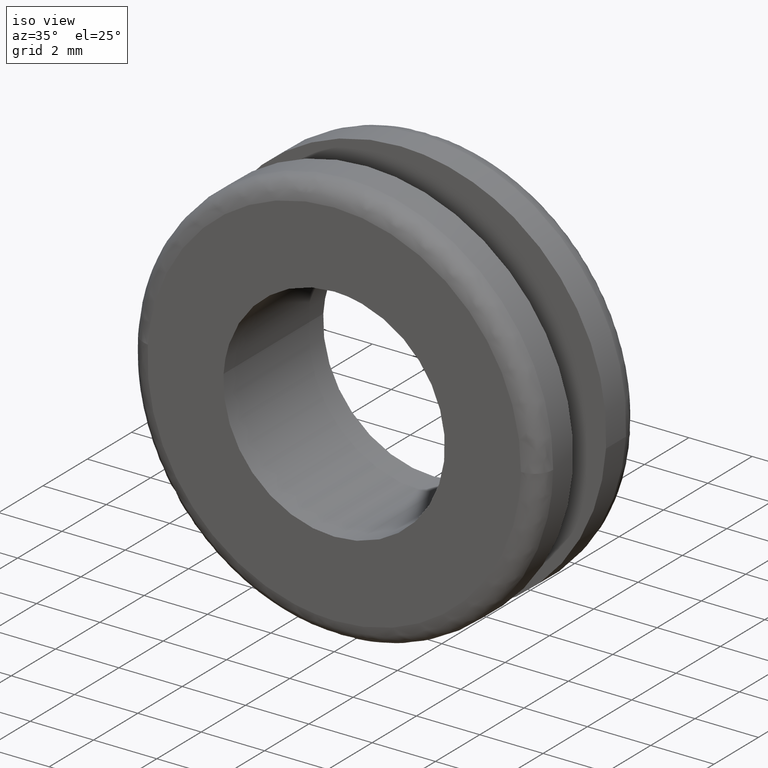
[diagram: clean part render]
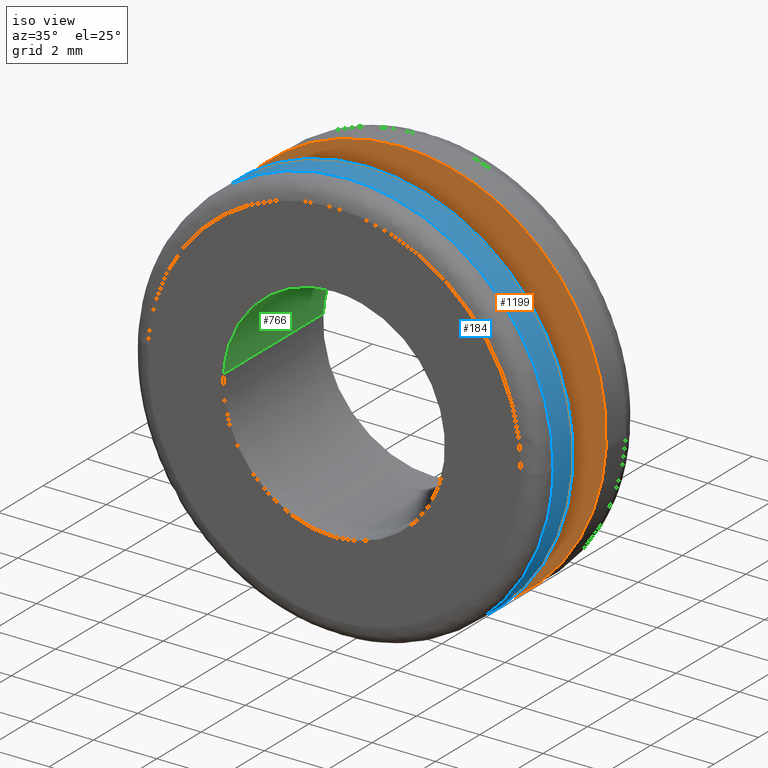
[diagram: same view with three faces highlighted in distinct colors, each labeled with its STEP entity id]
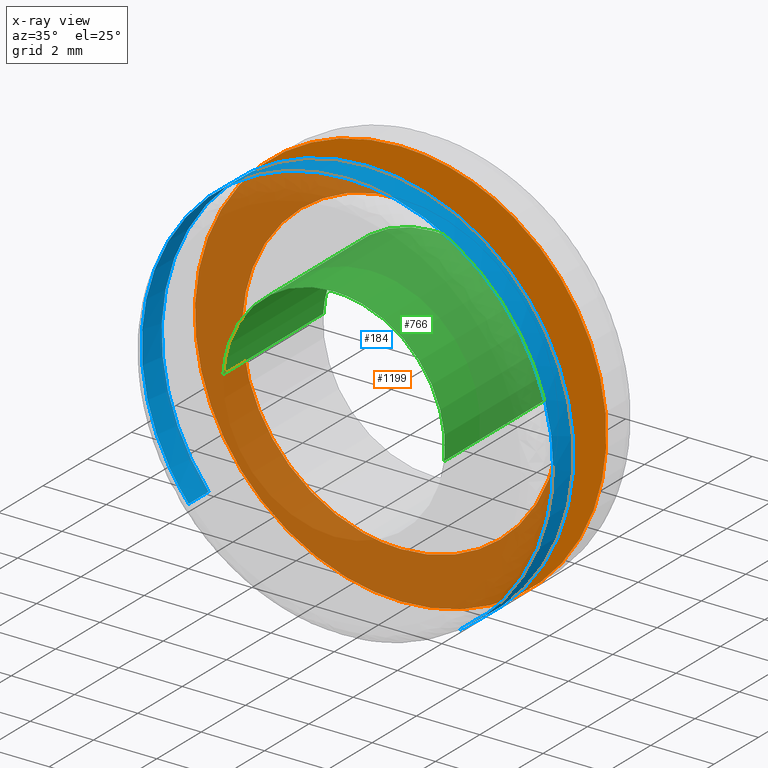
[diagram: x-ray of the same camera — body ghosted, the three highlighted faces saturated]
A machine part, iso view with three faces highlighted in distinct colors.
The next image is the same camera in x-ray (body ghosted, the three faces saturated) — at least one of them is partly hidden behind the body in this view.
Their STEP definitions:

[orange] entity #1199 — the highlighted face is a freeform B-spline surface patch.
#301=CARTESIAN_POINT('',(4.965048218866258,3.0,-0.590166234469792));
#302=VERTEX_POINT('',#301);
#308=CARTESIAN_POINT('',(0.0,3.0,5.0));
#309=VERTEX_POINT('',#308);
#310=CARTESIAN_POINT('',(4.965048218866258,3.000000000000000,-0.590166234469792));
#311=CARTESIAN_POINT('',(5.0,3.000000000000001,-0.296118102746663));
#312=CARTESIAN_POINT('',(5.0,3.0,-1.928755E-016));
#313=CARTESIAN_POINT('',(5.000000000000001,3.0,5.000000000000001));
#314=CARTESIAN_POINT('',(0.0,3.0,5.0));
#322=(BOUNDED_CURVE()B_SPLINE_CURVE(2,(#310,#311,#312,#313,#314),.UNSPECIFIED.,.F.,.U.)B_SPLINE_CURVE_WITH_KNOTS((3,2,3),(0.229562641625948,0.250000000000000,0.500000000000000),.UNSPECIFIED.)CURVE()GEOMETRIC_REPRESENTATION_ITEM()RATIONAL_B_SPLINE_CURVE((0.956027083691225,0.976056145287119,1.0,0.707106781186548,1.0))REPRESENTATION_ITEM(''));
#323=EDGE_CURVE('',#302,#309,#322,.T.);
#325=CARTESIAN_POINT('',(-4.990674085489411,3.0,0.305241170915862));
#326=VERTEX_POINT('',#325);
#327=CARTESIAN_POINT('',(0.0,3.0,5.0));
#328=CARTESIAN_POINT('',(-4.703531776132310,2.999999999999999,4.999999999999998));
#329=CARTESIAN_POINT('',(-4.990674085489411,3.0,0.305241170915862));
#337=(BOUNDED_CURVE()B_SPLINE_CURVE(2,(#327,#328,#329),.UNSPECIFIED.,.F.,.U.)B_SPLINE_CURVE_WITH_KNOTS((3,3),(0.500000000000000,0.739333015027880),.UNSPECIFIED.)CURVE()GEOMETRIC_REPRESENTATION_ITEM()RATIONAL_B_SPLINE_CURVE((1.0,0.719603931440624,0.976072154803484))REPRESENTATION_ITEM(''));
#338=EDGE_CURVE('',#309,#326,#337,.T.);
#412=CARTESIAN_POINT('',(0.0,3.0,-5.0));
#413=VERTEX_POINT('',#412);
#414=CARTESIAN_POINT('',(-4.990674085489411,3.0,0.305241170915862));
#415=CARTESIAN_POINT('',(-5.0,3.000000000000000,0.152763050973311));
#416=CARTESIAN_POINT('',(-5.0,3.0,-1.928755E-016));
#417=CARTESIAN_POINT('',(-5.000000000000001,3.0,-5.000000000000001));
#418=CARTESIAN_POINT('',(0.0,3.0,-5.0));
#426=(BOUNDED_CURVE()B_SPLINE_CURVE(2,(#414,#415,#416,#417,#418),.UNSPECIFIED.,.F.,.U.)B_SPLINE_CURVE_WITH_KNOTS((3,2,3),(0.739333015027880,0.750000000000000,1.0),.UNSPECIFIED.)CURVE()GEOMETRIC_REPRESENTATION_ITEM()RATIONAL_B_SPLINE_CURVE((0.976072154803484,0.987502849745924,1.0,0.707106781186548,1.0))REPRESENTATION_ITEM(''));
#427=EDGE_CURVE('',#326,#413,#426,.T.);
#429=CARTESIAN_POINT('',(0.0,3.0,-5.0));
#430=CARTESIAN_POINT('',(4.440877078264001,3.0,-4.999999999999999));
#431=CARTESIAN_POINT('',(4.965048218866258,3.000000000000000,-0.590166234469792));
#439=(BOUNDED_CURVE()B_SPLINE_CURVE(2,(#429,#430,#431),.UNSPECIFIED.,.F.,.U.)B_SPLINE_CURVE_WITH_KNOTS((3,3),(0.0,0.229562641625948),.UNSPECIFIED.)CURVE()GEOMETRIC_REPRESENTATION_ITEM()RATIONAL_B_SPLINE_CURVE((1.0,0.731050635899429,0.956027083691225))REPRESENTATION_ITEM(''));
#440=EDGE_CURVE('',#413,#302,#439,.T.);
#472=CARTESIAN_POINT('',(2.285515381072492,2.999999999999971,6.084933807600427));
#473=VERTEX_POINT('',#472);
#474=CARTESIAN_POINT('',(0.0,3.0,6.500000000000000));
#475=VERTEX_POINT('',#474);
#476=CARTESIAN_POINT('',(2.285515381072492,2.999999999999971,6.084933807600427));
#477=CARTESIAN_POINT('',(1.180447208073476,3.000000000000000,6.500000000000000));
#478=CARTESIAN_POINT('',(0.0,3.0,6.500000000000000));
#486=(BOUNDED_CURVE()B_SPLINE_CURVE(2,(#476,#477,#478),.UNSPECIFIED.,.F.,.U.)B_SPLINE_CURVE_WITH_KNOTS((3,3),(0.440284208601526,0.500000000000000),.UNSPECIFIED.)CURVE()GEOMETRIC_REPRESENTATION_ITEM()RATIONAL_B_SPLINE_CURVE((0.893499600774832,0.930038598573233,1.0))REPRESENTATION_ITEM(''));
#487=EDGE_CURVE('',#473,#475,#486,.T.);
#571=CARTESIAN_POINT('',(6.487876494954307,3.000000000000068,-0.396810516738664));
#572=VERTEX_POINT('',#571);
#578=CARTESIAN_POINT('',(0.0,3.0,-6.500000000000000));
#579=VERTEX_POINT('',#578);
#580=CARTESIAN_POINT('',(0.0,3.0,-6.500000000000000));
#581=CARTESIAN_POINT('',(6.114594146796498,3.000000000000000,-6.500000000000001));
#582=CARTESIAN_POINT('',(6.487876494954307,3.000000000000068,-0.396810516738664));
#590=(BOUNDED_CURVE()B_SPLINE_CURVE(2,(#580,#581,#582),.UNSPECIFIED.,.F.,.U.)B_SPLINE_CURVE_WITH_KNOTS((3,3),(0.0,0.239333094958683),.UNSPECIFIED.)CURVE()GEOMETRIC_REPRESENTATION_ITEM()RATIONAL_B_SPLINE_CURVE((1.0,0.719603837795862,0.976072326110551))REPRESENTATION_ITEM(''));
#591=EDGE_CURVE('',#579,#572,#590,.T.);
#593=CARTESIAN_POINT('',(0.0,3.0,6.500000000000000));
#594=CARTESIAN_POINT('',(-6.500000000000000,3.000000000000000,6.500000000000000));
#595=CARTESIAN_POINT('',(-6.500000000000000,3.0,-1.928755E-016));
#596=CARTESIAN_POINT('',(-6.500000000000000,3.000000000000000,-6.500000000000000));
#597=CARTESIAN_POINT('',(0.0,3.0,-6.500000000000000));
#605=(BOUNDED_CURVE()B_SPLINE_CURVE(2,(#593,#594,#595,#596,#597),.UNSPECIFIED.,.F.,.U.)B_SPLINE_CURVE_WITH_KNOTS((3,2,3),(0.500000000000000,0.750000000000000,1.0),.UNSPECIFIED.)CURVE()GEOMETRIC_REPRESENTATION_ITEM()RATIONAL_B_SPLINE_CURVE((1.0,0.707106781186547,1.0,0.707106781186547,1.0))REPRESENTATION_ITEM(''));
#606=EDGE_CURVE('',#475,#579,#605,.T.);
#625=CARTESIAN_POINT('',(6.487876494954307,3.000000000000068,-0.396810516738664));
#626=CARTESIAN_POINT('',(6.500000000000000,3.000000000000001,-0.198590459325951));
#627=CARTESIAN_POINT('',(6.500000000000000,3.0,-1.928755E-016));
#628=CARTESIAN_POINT('',(6.499999999999999,3.000000000000000,4.501963519933568));
#629=CARTESIAN_POINT('',(2.285515381072492,2.999999999999971,6.084933807600427));
#637=(BOUNDED_CURVE()B_SPLINE_CURVE(2,(#625,#626,#627,#628,#629),.UNSPECIFIED.,.F.,.U.)B_SPLINE_CURVE_WITH_KNOTS((3,2,3),(0.239333094958683,0.250000000000000,0.440284208601526),.UNSPECIFIED.)CURVE()GEOMETRIC_REPRESENTATION_ITEM()RATIONAL_B_SPLINE_CURVE((0.976072326110551,0.987502943390685,1.0,0.777068182613315,0.893499600774832))REPRESENTATION_ITEM(''));
#638=EDGE_CURVE('',#572,#473,#637,.T.);
#1182=CARTESIAN_POINT('',(-7.149293404633553,3.0,-7.149349974803476));
#1183=CARTESIAN_POINT('',(-7.149293404633553,3.0,7.149350323490650));
#1184=CARTESIAN_POINT('',(7.148161217386276,3.0,-7.149349974803476));
#1185=CARTESIAN_POINT('',(7.148161217386276,3.0,7.149350323490650));
#1186=B_SPLINE_SURFACE_WITH_KNOTS('',1,1,((#1182,#1184),(#1183,#1185)),.UNSPECIFIED.,.F.,.F.,.U.,(2,2),(2,2),(0.0,14.298700298294129),(0.0,14.297454622019830),.UNSPECIFIED.);
#1187=ORIENTED_EDGE('',*,*,#591,.T.);
#1188=ORIENTED_EDGE('',*,*,#638,.T.);
#1189=ORIENTED_EDGE('',*,*,#487,.T.);
#1190=ORIENTED_EDGE('',*,*,#606,.T.);
#1191=EDGE_LOOP('',(#1187,#1188,#1189,#1190));
#1192=FACE_OUTER_BOUND('',#1191,.T.);
#1193=ORIENTED_EDGE('',*,*,#338,.F.);
#1194=ORIENTED_EDGE('',*,*,#323,.F.);
#1195=ORIENTED_EDGE('',*,*,#440,.F.);
#1196=ORIENTED_EDGE('',*,*,#427,.F.);
#1197=EDGE_LOOP('',(#1193,#1194,#1195,#1196));
#1198=FACE_BOUND('',#1197,.T.);
#1199=ADVANCED_FACE('',(#1192,#1198),#1186,.F.);

[blue] entity #184 — the highlighted face is a freeform B-spline surface patch.
#44=CARTESIAN_POINT('',(3.527737599937955,1.522500000001081,-5.459401746160834));
#45=CARTESIAN_POINT('',(3.843977972462719,1.522500000001081,-5.255054620844674));
#46=CARTESIAN_POINT('',(4.134508431805464,1.522500000001081,-5.015559792020178));
#47=CARTESIAN_POINT('',(9.150068223825642,1.522500000001081,-0.881051360214714));
#48=CARTESIAN_POINT('',(5.015559792020178,1.522500000001081,4.134508431805464));
#49=CARTESIAN_POINT('',(0.881051360214714,1.522500000001081,9.150068223825642));
#50=CARTESIAN_POINT('',(-4.134508431805464,1.522500000001081,5.015559792020178));
#51=CARTESIAN_POINT('',(-9.150068223825642,1.522500000001081,0.881051360214714));
#52=CARTESIAN_POINT('',(-5.015559792020178,1.522500000001081,-4.134508431805464));
#53=CARTESIAN_POINT('',(3.527737599937955,0.576937499954984,-5.459401746160834));
#54=CARTESIAN_POINT('',(3.843977972462719,0.576937499954984,-5.255054620844674));
#55=CARTESIAN_POINT('',(4.134508431805464,0.576937499954984,-5.015559792020178));
#56=CARTESIAN_POINT('',(9.150068223825642,0.576937499954984,-0.881051360214714));
#57=CARTESIAN_POINT('',(5.015559792020178,0.576937499954984,4.134508431805464));
#58=CARTESIAN_POINT('',(0.881051360214714,0.576937499954984,9.150068223825642));
#59=CARTESIAN_POINT('',(-4.134508431805464,0.576937499954984,5.015559792020178));
#60=CARTESIAN_POINT('',(-9.150068223825642,0.576937499954984,0.881051360214714));
#61=CARTESIAN_POINT('',(-5.015559792020178,0.576937499954984,-4.134508431805464));
#69=(BOUNDED_SURFACE()B_SPLINE_SURFACE(2,1,((#44,#53),(#45,#54),(#46,#55),(#47,#56),(#48,#57),(#49,#58),(#50,#59),(#51,#60),(#52,#61)),.UNSPECIFIED.,.F.,.F.,.U.)B_SPLINE_SURFACE_WITH_KNOTS((3,2,2,2,3),(2,2),(0.0,0.861564209736037,11.631116831436509,22.400669453136970,33.170222074837440),(0.0,1.0),.UNSPECIFIED.)GEOMETRIC_REPRESENTATION_ITEM()RATIONAL_B_SPLINE_SURFACE(((0.956886118190660,0.956886118190660),(0.976568542494924,0.976568542494924),(1.0,1.0),(0.707106781186548,0.707106781186548),(1.0,1.0),(0.707106781186548,0.707106781186548),(1.0,1.0),(0.707106781186548,0.707106781186548),(1.0,1.0)))REPRESENTATION_ITEM('')SURFACE());
#70=CARTESIAN_POINT('',(3.527737390288090,0.599999999992864,-5.459401881631385));
#71=VERTEX_POINT('',#70);
#72=CARTESIAN_POINT('',(6.499486787324761,0.599999999956108,-0.081679259245201));
#73=VERTEX_POINT('',#72);
#74=CARTESIAN_POINT('',(3.527737390288090,0.599999999992864,-5.459401881631385));
#75=CARTESIAN_POINT('',(6.455681202378268,0.599999999979934,-3.567433454250579));
#76=CARTESIAN_POINT('',(6.499486787324761,0.599999999956108,-0.081679259245201));
#84=(BOUNDED_CURVE()B_SPLINE_CURVE(2,(#74,#75,#76),.UNSPECIFIED.,.F.,.U.)B_SPLINE_CURVE_WITH_KNOTS((3,3),(0.092934731225705,0.247784295921544),.UNSPECIFIED.)CURVE()GEOMETRIC_REPRESENTATION_ITEM()RATIONAL_B_SPLINE_CURVE((0.863190106682966,0.816652486740027,0.994854295643588))REPRESENTATION_ITEM(''));
#85=EDGE_CURVE('',#71,#73,#84,.T.);
#86=ORIENTED_EDGE('',*,*,#85,.F.);
#87=CARTESIAN_POINT('',(3.527737407828749,1.499999999999984,-5.459401870297297));
#88=VERTEX_POINT('',#87);
#89=CARTESIAN_POINT('',(3.527737407828749,1.499999999999984,-5.459401870297297));
#90=CARTESIAN_POINT('',(3.527737390288090,0.599999999992864,-5.459401881631385));
#91=QUASI_UNIFORM_CURVE('',1,(#89,#90),.UNSPECIFIED.,.F.,.U.);
#92=EDGE_CURVE('',#88,#71,#91,.T.);
#93=ORIENTED_EDGE('',*,*,#92,.F.);
#94=CARTESIAN_POINT('',(0.0,1.499999999999984,6.500000000000000));
#95=VERTEX_POINT('',#94);
#96=CARTESIAN_POINT('',(3.527737407828749,1.499999999999984,-5.459401870297297));
#97=CARTESIAN_POINT('',(6.500000000000000,1.499999999999984,-3.538795662514091));
#98=CARTESIAN_POINT('',(6.500000000000000,1.499999999999984,-1.928755E-016));
#99=CARTESIAN_POINT('',(6.500000000000000,1.499999999999984,6.500000000000000));
#100=CARTESIAN_POINT('',(0.0,1.499999999999984,6.500000000000000));
#108=(BOUNDED_CURVE()B_SPLINE_CURVE(2,(#96,#97,#98,#99,#100),.UNSPECIFIED.,.F.,.U.)B_SPLINE_CURVE_WITH_KNOTS((3,2,3),(0.092934732206239,0.250000000000000,0.500000000000000),.UNSPECIFIED.)CURVE()GEOMETRIC_REPRESENTATION_ITEM()RATIONAL_B_SPLINE_CURVE((0.863190106093599,0.815986592608353,1.0,0.707106781186547,1.0))REPRESENTATION_ITEM(''));
#109=EDGE_CURVE('',#88,#95,#108,.T.);
#110=ORIENTED_EDGE('',*,*,#109,.T.);
#111=CARTESIAN_POINT('',(-5.015559880678618,1.499999999999984,-4.134508324254174));
#112=VERTEX_POINT('',#111);
#113=CARTESIAN_POINT('',(0.0,1.499999999999984,6.500000000000000));
#114=CARTESIAN_POINT('',(-6.500000000000000,1.499999999999984,6.500000000000000));
#115=CARTESIAN_POINT('',(-6.500000000000000,1.499999999999984,-1.928755E-016));
#116=CARTESIAN_POINT('',(-6.500000000000000,1.499999999999984,-2.333738305399645));
#117=CARTESIAN_POINT('',(-5.015559880678619,1.499999999999985,-4.134508324254174));
#125=(BOUNDED_CURVE()B_SPLINE_CURVE(2,(#113,#114,#115,#116,#117),.UNSPECIFIED.,.F.,.U.)B_SPLINE_CURVE_WITH_KNOTS((3,2,3),(0.500000000000000,0.750000000000000,0.860504619373458),.UNSPECIFIED.)CURVE()GEOMETRIC_REPRESENTATION_ITEM()RATIONAL_B_SPLINE_CURVE((1.0,0.707106781186547,1.0,0.870535785351809,0.855522720801075))REPRESENTATION_ITEM(''));
#126=EDGE_CURVE('',#95,#112,#125,.T.);
#127=ORIENTED_EDGE('',*,*,#126,.T.);
#128=CARTESIAN_POINT('',(-5.015560096692222,0.599999999999975,-4.134508062208667));
#129=VERTEX_POINT('',#128);
#130=CARTESIAN_POINT('',(-5.015559880678618,1.499999999999984,-4.134508324254174));
#131=CARTESIAN_POINT('',(-5.015560096692222,0.599999999999975,-4.134508062208667));
#132=QUASI_UNIFORM_CURVE('',1,(#130,#131),.UNSPECIFIED.,.F.,.U.);
#133=EDGE_CURVE('',#112,#129,#132,.T.);
#134=ORIENTED_EDGE('',*,*,#133,.T.);
#135=CARTESIAN_POINT('',(-6.484176879962625,0.599999999956112,0.453266135243000));
#136=VERTEX_POINT('',#135);
#137=CARTESIAN_POINT('',(-6.484176879962625,0.599999999956112,0.453266135243000));
#138=CARTESIAN_POINT('',(-6.500000000000000,0.599999999999979,0.226909253188261));
#139=CARTESIAN_POINT('',(-6.500000000000000,0.599999999999979,-1.928755E-016));
#140=CARTESIAN_POINT('',(-6.500000000000001,0.599999999999979,-2.333737922020143));
#141=CARTESIAN_POINT('',(-5.015560096692223,0.599999999999975,-4.134508062208667));
#149=(BOUNDED_CURVE()B_SPLINE_CURVE(2,(#137,#138,#139,#140,#141),.UNSPECIFIED.,.F.,.U.)B_SPLINE_CURVE_WITH_KNOTS((3,2,3),(0.737833686534995,0.750000000000000,0.860504603570303),.UNSPECIFIED.)CURVE()GEOMETRIC_REPRESENTATION_ITEM()RATIONAL_B_SPLINE_CURVE((0.972879876386772,0.985746277152565,1.0,0.870535803866357,0.855522725095084))REPRESENTATION_ITEM(''));
#150=EDGE_CURVE('',#136,#129,#149,.T.);
#151=ORIENTED_EDGE('',*,*,#150,.F.);
#152=CARTESIAN_POINT('',(0.0,0.599999999999979,6.500000000000000));
#153=VERTEX_POINT('',#152);
#154=CARTESIAN_POINT('',(0.0,0.599999999999979,6.500000000000000));
#155=CARTESIAN_POINT('',(-6.061489507228137,0.599999999999979,6.499999999999999));
#156=CARTESIAN_POINT('',(-6.484176879962625,0.599999999956112,0.453266135243000));
#164=(BOUNDED_CURVE()B_SPLINE_CURVE(2,(#154,#155,#156),.UNSPECIFIED.,.F.,.U.)B_SPLINE_CURVE_WITH_KNOTS((3,3),(0.500000000000000,0.737833686534996),.UNSPECIFIED.)CURVE()GEOMETRIC_REPRESENTATION_ITEM()RATIONAL_B_SPLINE_CURVE((1.0,0.721360504033981,0.972879876386774))REPRESENTATION_ITEM(''));
#165=EDGE_CURVE('',#153,#136,#164,.T.);
#166=ORIENTED_EDGE('',*,*,#165,.F.);
#167=CARTESIAN_POINT('',(6.499486787324761,0.599999999956108,-0.081679259245201));
#168=CARTESIAN_POINT('',(6.500000000000000,0.599999999999979,-0.040841241950693));
#169=CARTESIAN_POINT('',(6.500000000000000,0.599999999999979,-1.928755E-016));
#170=CARTESIAN_POINT('',(6.500000000000000,0.599999999999979,6.500000000000000));
#171=CARTESIAN_POINT('',(0.0,0.599999999999979,6.500000000000000));
#179=(BOUNDED_CURVE()B_SPLINE_CURVE(2,(#167,#168,#169,#170,#171),.UNSPECIFIED.,.F.,.U.)B_SPLINE_CURVE_WITH_KNOTS((3,2,3),(0.247784295921544,0.250000000000000,0.500000000000000),.UNSPECIFIED.)CURVE()GEOMETRIC_REPRESENTATION_ITEM()RATIONAL_B_SPLINE_CURVE((0.994854295643588,0.997404141202091,1.0,0.707106781186547,1.0))REPRESENTATION_ITEM(''));
#180=EDGE_CURVE('',#73,#153,#179,.T.);
#181=ORIENTED_EDGE('',*,*,#180,.F.);
#182=EDGE_LOOP('',(#86,#93,#110,#127,#134,#151,#166,#181));
#183=FACE_OUTER_BOUND('',#182,.T.);
#184=ADVANCED_FACE('',(#183),#69,.T.);

[green] entity #766 — the highlighted face is a freeform B-spline surface patch.
#660=CARTESIAN_POINT('',(3.469403111842233,4.612500000000003,-0.464692801240372));
#661=CARTESIAN_POINT('',(3.472476868844137,4.612500000000001,-0.438833608833245));
#662=CARTESIAN_POINT('',(3.487356654070120,4.612500000000002,-0.313651550232922));
#663=CARTESIAN_POINT('',(3.493471794476533,4.612500000000001,-0.213669888372000));
#664=CARTESIAN_POINT('',(3.707141682848533,4.612500000000001,3.279801906104533));
#665=CARTESIAN_POINT('',(0.213669888371999,4.612500000000001,3.493471794476533));
#666=CARTESIAN_POINT('',(-3.279801906104533,4.612500000000001,3.707141682848533));
#667=CARTESIAN_POINT('',(-3.495008460237504,4.612500000000002,0.188545625265050));
#668=CARTESIAN_POINT('',(-3.496535997948555,4.612500000000002,0.163570604455094));
#669=CARTESIAN_POINT('',(3.469403111842233,-0.115312500000002,-0.464692801240372));
#670=CARTESIAN_POINT('',(3.472476868844137,-0.115312500000002,-0.438833608833245));
#671=CARTESIAN_POINT('',(3.487356654070120,-0.115312500000002,-0.313651550232922));
#672=CARTESIAN_POINT('',(3.493471794476533,-0.115312500000002,-0.213669888372000));
#673=CARTESIAN_POINT('',(3.707141682848533,-0.115312500000002,3.279801906104533));
#674=CARTESIAN_POINT('',(0.213669888371999,-0.115312500000002,3.493471794476533));
#675=CARTESIAN_POINT('',(-3.279801906104533,-0.115312500000002,3.707141682848533));
#676=CARTESIAN_POINT('',(-3.495008460237504,-0.115312500000002,0.188545625265050));
#677=CARTESIAN_POINT('',(-3.496535997948555,-0.115312500000002,0.163570604455094));
#685=(BOUNDED_SURFACE()B_SPLINE_SURFACE(2,1,((#660,#669),(#661,#670),(#662,#671),(#663,#672),(#664,#673),(#665,#674),(#666,#675),(#667,#676),(#668,#677)),.UNSPECIFIED.,.F.,.F.,.U.)B_SPLINE_SURFACE_WITH_KNOTS((3,1,2,2,1,3),(2,2),(0.0,0.059143708986441,0.291103303915375,6.090093177138704,11.889083050362030,11.948239091698371),(0.0,4.727812500000005),.UNSPECIFIED.)GEOMETRIC_REPRESENTATION_ITEM()RATIONAL_B_SPLINE_SURFACE(((0.972009337327451,0.972009337327451),(0.974757569061289,0.974757569061289),(0.988284271247462,0.988284271247462),(1.0,1.0),(0.707106781186548,0.707106781186548),(1.0,1.0),(0.707106781186548,0.707106781186548),(1.002987831284077,1.002987831284077),(1.005975662568154,1.005975662568154)))REPRESENTATION_ITEM('')SURFACE());
#686=CARTESIAN_POINT('',(3.475533966975179,4.500000000000004,-0.413114565676108));
#687=VERTEX_POINT('',#686);
#688=CARTESIAN_POINT('',(0.0,4.500000000000000,3.500000000000000));
#689=VERTEX_POINT('',#688);
#690=CARTESIAN_POINT('',(3.475533966975180,4.500000000000004,-0.413114565676108));
#691=CARTESIAN_POINT('',(3.500000000000000,4.500000000000000,-0.207281763190123));
#692=CARTESIAN_POINT('',(3.500000000000000,4.500000000000000,-1.928755E-016));
#693=CARTESIAN_POINT('',(3.500000000000000,4.500000000000000,3.500000000000000));
#694=CARTESIAN_POINT('',(0.0,4.500000000000000,3.500000000000000));
#702=(BOUNDED_CURVE()B_SPLINE_CURVE(2,(#690,#691,#692,#693,#694),.UNSPECIFIED.,.F.,.U.)B_SPLINE_CURVE_WITH_KNOTS((3,2,3),(0.229562729078540,0.250000000000000,0.500000000000000),.UNSPECIFIED.)CURVE()GEOMETRIC_REPRESENTATION_ITEM()RATIONAL_B_SPLINE_CURVE((0.956027255102232,0.976056247744204,1.0,0.707106781186547,1.0))REPRESENTATION_ITEM(''));
#703=EDGE_CURVE('',#687,#689,#702,.T.);
#704=ORIENTED_EDGE('',*,*,#703,.F.);
#705=CARTESIAN_POINT('',(3.475533959448050,-5.628106E-016,-0.413114629002674));
#706=VERTEX_POINT('',#705);
#707=CARTESIAN_POINT('',(3.475533966975179,4.500000000000004,-0.413114565676108));
#708=CARTESIAN_POINT('',(3.475533959448050,-5.628106E-016,-0.413114629002674));
#709=QUASI_UNIFORM_CURVE('',1,(#707,#708),.UNSPECIFIED.,.F.,.U.);
#710=EDGE_CURVE('',#687,#706,#709,.T.);
#711=ORIENTED_EDGE('',*,*,#710,.T.);
#712=CARTESIAN_POINT('',(0.0,-6.429183E-016,3.500000000000000));
#713=VERTEX_POINT('',#712);
#714=CARTESIAN_POINT('',(3.475533959448050,-5.628106E-016,-0.413114629002674));
#715=CARTESIAN_POINT('',(3.499999999999999,-6.429183E-016,-0.207281795188132));
#716=CARTESIAN_POINT('',(3.500000000000000,-6.429183E-016,-1.928755E-016));
#717=CARTESIAN_POINT('',(3.500000000000000,-6.429183E-016,3.500000000000000));
#718=CARTESIAN_POINT('',(0.0,-6.429183E-016,3.500000000000000));
#726=(BOUNDED_CURVE()B_SPLINE_CURVE(2,(#714,#715,#716,#717,#718),.UNSPECIFIED.,.F.,.U.)B_SPLINE_CURVE_WITH_KNOTS((3,2,3),(0.229562725999186,0.250000000000000,0.500000000000000),.UNSPECIFIED.)CURVE()GEOMETRIC_REPRESENTATION_ITEM()RATIONAL_B_SPLINE_CURVE((0.956027249066558,0.976056244136516,1.0,0.707106781186547,1.0))REPRESENTATION_ITEM(''));
#727=EDGE_CURVE('',#706,#713,#726,.T.);
#728=ORIENTED_EDGE('',*,*,#727,.T.);
#729=CARTESIAN_POINT('',(-3.493472121067672,-3.075814E-016,0.213664548520139));
#730=VERTEX_POINT('',#729);
#731=CARTESIAN_POINT('',(0.0,-6.429183E-016,3.500000000000000));
#732=CARTESIAN_POINT('',(-3.292476276195362,-6.429183E-016,3.499999999999999));
#733=CARTESIAN_POINT('',(-3.493472121067673,-3.075814E-016,0.213664548520139));
#741=(BOUNDED_CURVE()B_SPLINE_CURVE(2,(#731,#732,#733),.UNSPECIFIED.,.F.,.U.)B_SPLINE_CURVE_WITH_KNOTS((3,3),(0.500000000000000,0.739333225983751),.UNSPECIFIED.)CURVE()GEOMETRIC_REPRESENTATION_ITEM()RATIONAL_B_SPLINE_CURVE((1.0,0.719603684290447,0.976072606922698))REPRESENTATION_ITEM(''));
#742=EDGE_CURVE('',#713,#730,#741,.T.);
#743=ORIENTED_EDGE('',*,*,#742,.T.);
#744=CARTESIAN_POINT('',(-3.493472125051436,4.500000000000011,0.213664483382879));
#745=VERTEX_POINT('',#744);
#746=CARTESIAN_POINT('',(-3.493472125051436,4.500000000000011,0.213664483382879));
#747=CARTESIAN_POINT('',(-3.493472121067672,-3.075814E-016,0.213664548520139));
#748=QUASI_UNIFORM_CURVE('',1,(#746,#747),.UNSPECIFIED.,.F.,.U.);
#749=EDGE_CURVE('',#745,#730,#748,.T.);
#750=ORIENTED_EDGE('',*,*,#749,.F.);
#751=CARTESIAN_POINT('',(0.0,4.500000000000000,3.500000000000000));
#752=CARTESIAN_POINT('',(-3.292476337699677,4.500000000000001,3.500000000000000));
#753=CARTESIAN_POINT('',(-3.493472125051436,4.500000000000011,0.213664483382879));
#761=(BOUNDED_CURVE()B_SPLINE_CURVE(2,(#751,#752,#753),.UNSPECIFIED.,.F.,.U.)B_SPLINE_CURVE_WITH_KNOTS((3,3),(0.500000000000000,0.739333229200960),.UNSPECIFIED.)CURVE()GEOMETRIC_REPRESENTATION_ITEM()RATIONAL_B_SPLINE_CURVE((1.0,0.719603680521252,0.976072613817806))REPRESENTATION_ITEM(''));
#762=EDGE_CURVE('',#689,#745,#761,.T.);
#763=ORIENTED_EDGE('',*,*,#762,.F.);
#764=EDGE_LOOP('',(#704,#711,#728,#743,#750,#763));
#765=FACE_OUTER_BOUND('',#764,.T.);
#766=ADVANCED_FACE('',(#765),#685,.F.);